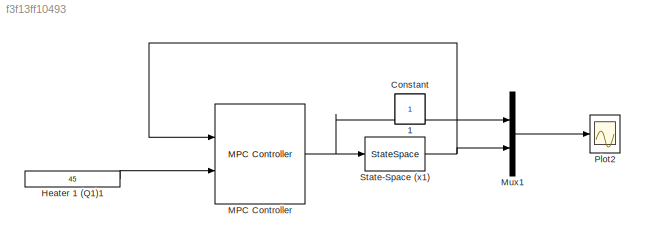
MODEL slx_f3f13ff10493
KIND model
CONFIG AbsTol = auto
CONFIG FixedStep = auto
CONFIG MaxStep = auto
CONFIG MinStep = auto
CONFIG RelTol = 1e-3
CONFIG SampleTimeConstraint = Unconstrained
CONFIG Solver = ode45
CONFIG SolverMode = Auto
CONFIG SolverName = ode45
CONFIG StartFcn = clear all
CONFIG StartTime = 0.0
CONFIG StopTime = 700
BLOCK [Constant] 1
  IOType = siggen
BLOCK [Constant] Constant
  IOType = siggen
BLOCK [Constant] Heater 1 (Q1)1
  Value = 45
BLOCK [Reference] MPC Controller  REF=mpclib/MPC Controller  (lib defined in mdl_ae329e0e0455)
  Ports = [2, 1]
  SCDEnableBlockLinearizationSpecification = on
  SourceBlock = mpclib/MPC Controller
  SourceType = MPC
BLOCK [Mux] Mux1
  DisplayOption = bar
  Inputs = 2
  Ports = [2, 1]
BLOCK [Scope] Plot2
  Ports = [1]
  ScopeSpecificationString = Simulink.scopes.TimeScopeBlockCfg('CurrentConfiguration', extmgr.ConfigurationSet(extmgr.Configuration('Core','General UI',true,'FigureColor',[0.156862745098039 0.156862745098039 0.156862745098039]),extmgr.Configuration('Core','Source UI',true),extmgr.Configuration('Sources','WiredSimulink',true,'DataLoggingLimitDataPoints',true,'DataLoggingSaveFormat','Array','DataLoggingDecimation','1','DataLogg...<+3142ch>
BLOCK [StateSpace] State-Space (x1)
  A = -0.005070611210911
  B = 1.068970183519867e-05
  C = 3.695395325035177e+02
  D = 0
  Ports = [1, 1]
  X0 = 0.004775767159700
LINE Heater 1 (Q1)1:1 -> MPC Controller:2
NET MPC Controller:1 -> Mux1:1, State-Space (x1):1
LINE Mux1:1 -> Plot2:1
NET State-Space (x1):1 -> MPC Controller:1, Mux1:2
note: NET lines group one-source signal fan-out (src -> all destinations, sorted); 1:1 wires keep LINE
